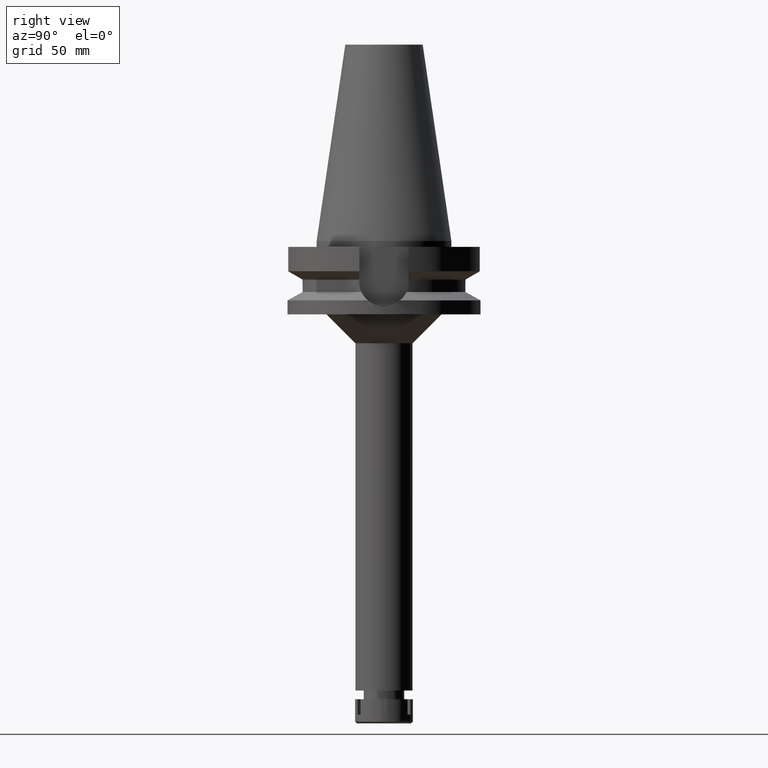
[diagram: clean part render]
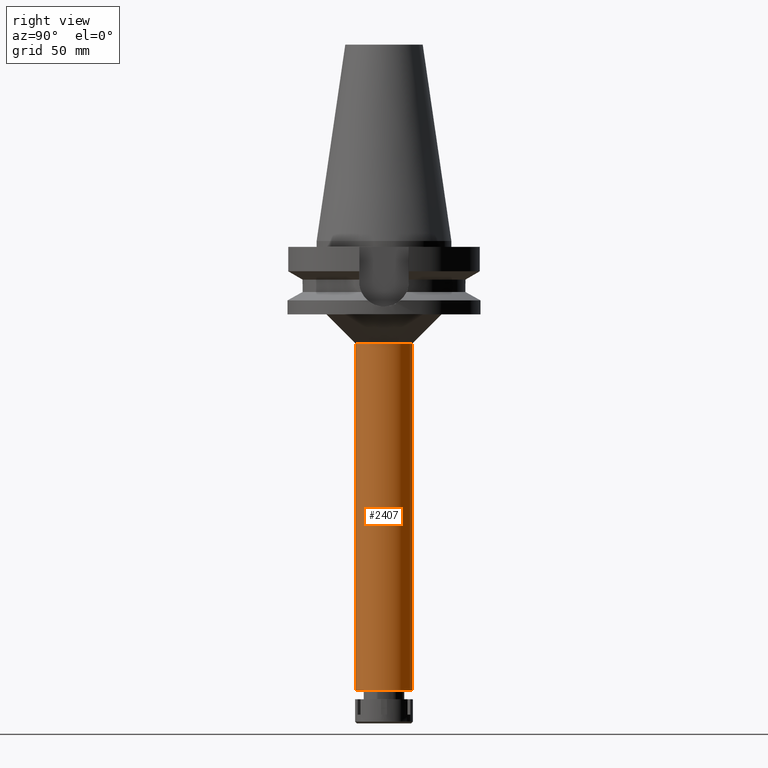
[diagram: same view with one face highlighted and labeled with its STEP entity id]
A machine part, right view. The second image highlights one B-rep face of the part: STEP entity #2407.
In plain terms, the highlighted cylindrical surface (edge-blend (fillet) strip) has radius 14.75 mm, axis along (0, 0, -1).
Its self-contained STEP definition (entity closure, byte-faithful):
#30 = EDGE_CURVE ( 'NONE', #2574, #1092, #2258, .T. ) ;
#69 = EDGE_LOOP ( 'NONE', ( #2079, #2520, #3462, #174 ) ) ;
#91 = CARTESIAN_POINT ( 'NONE',  ( 0.0000000000000000000, -14.75000000000000000, -233.0000000000000000 ) ) ;
#174 = ORIENTED_EDGE ( 'NONE', *, *, #30, .F. ) ;
#429 = DIRECTION ( 'NONE',  ( 0.0000000000000000000, 0.0000000000000000000, 1.000000000000000000 ) ) ;
#534 = CYLINDRICAL_SURFACE ( 'NONE', #716, 14.75000000000000000 ) ;
#564 = VERTEX_POINT ( 'NONE', #91 ) ;
#577 = CARTESIAN_POINT ( 'NONE',  ( 0.0000000000000000000, -14.75000000000000000, -53.00000000000000000 ) ) ;
#585 = VECTOR ( 'NONE', #1976, 1000.000000000000000 ) ;
#715 = AXIS2_PLACEMENT_3D ( 'NONE', #1045, #3360, #858 ) ;
#716 = AXIS2_PLACEMENT_3D ( 'NONE', #1695, #1106, #2762 ) ;
#858 = DIRECTION ( 'NONE',  ( 0.0000000000000000000, 1.000000000000000000, 0.0000000000000000000 ) ) ;
#924 = EDGE_CURVE ( 'NONE', #3188, #564, #1370, .T. ) ;
#1045 = CARTESIAN_POINT ( 'NONE',  ( 0.0000000000000000000, 0.0000000000000000000, -53.00000000000000000 ) ) ;
#1092 = VERTEX_POINT ( 'NONE', #2332 ) ;
#1106 = DIRECTION ( 'NONE',  ( 0.0000000000000000000, 0.0000000000000000000, -1.000000000000000000 ) ) ;
#1107 = DIRECTION ( 'NONE',  ( 0.0000000000000000000, 0.0000000000000000000, -1.000000000000000000 ) ) ;
#1370 = LINE ( 'NONE', #577, #585 ) ;
#1695 = CARTESIAN_POINT ( 'NONE',  ( 0.0000000000000000000, 2.682466348851999684E-14, 119.0400000000000063 ) ) ;
#1825 = AXIS2_PLACEMENT_3D ( 'NONE', #3195, #429, #3214 ) ;
#1976 = DIRECTION ( 'NONE',  ( 0.0000000000000000000, 0.0000000000000000000, -1.000000000000000000 ) ) ;
#2054 = CIRCLE ( 'NONE', #715, 14.75000000000000000 ) ;
#2079 = ORIENTED_EDGE ( 'NONE', *, *, #2832, .T. ) ;
#2258 = LINE ( 'NONE', #2797, #2290 ) ;
#2290 = VECTOR ( 'NONE', #1107, 1000.000000000000000 ) ;
#2332 = CARTESIAN_POINT ( 'NONE',  ( 0.0000000000000000000, 14.75000000000000000, -233.0000000000000000 ) ) ;
#2407 = ADVANCED_FACE ( 'NONE', ( #3365 ), #534, .T. ) ;
#2520 = ORIENTED_EDGE ( 'NONE', *, *, #924, .T. ) ;
#2574 = VERTEX_POINT ( 'NONE', #2682 ) ;
#2682 = CARTESIAN_POINT ( 'NONE',  ( 0.0000000000000000000, 14.75000000000000000, -53.00000000000000000 ) ) ;
#2762 = DIRECTION ( 'NONE',  ( 0.0000000000000000000, -1.000000000000000000, 0.0000000000000000000 ) ) ;
#2797 = CARTESIAN_POINT ( 'NONE',  ( 0.0000000000000000000, 14.75000000000000000, -53.00000000000000000 ) ) ;
#2832 = EDGE_CURVE ( 'NONE', #2574, #3188, #2054, .T. ) ;
#2979 = CARTESIAN_POINT ( 'NONE',  ( 0.0000000000000000000, -14.75000000000000000, -53.00000000000000000 ) ) ;
#3054 = EDGE_CURVE ( 'NONE', #564, #1092, #3572, .T. ) ;
#3188 = VERTEX_POINT ( 'NONE', #2979 ) ;
#3195 = CARTESIAN_POINT ( 'NONE',  ( 0.0000000000000000000, 2.682466348851999684E-14, -233.0000000000000000 ) ) ;
#3214 = DIRECTION ( 'NONE',  ( 0.0000000000000000000, -1.000000000000000000, 0.0000000000000000000 ) ) ;
#3360 = DIRECTION ( 'NONE',  ( 0.0000000000000000000, 0.0000000000000000000, -1.000000000000000000 ) ) ;
#3365 = FACE_OUTER_BOUND ( 'NONE', #69, .T. ) ;
#3462 = ORIENTED_EDGE ( 'NONE', *, *, #3054, .T. ) ;
#3572 = CIRCLE ( 'NONE', #1825, 14.75000000000000000 ) ;